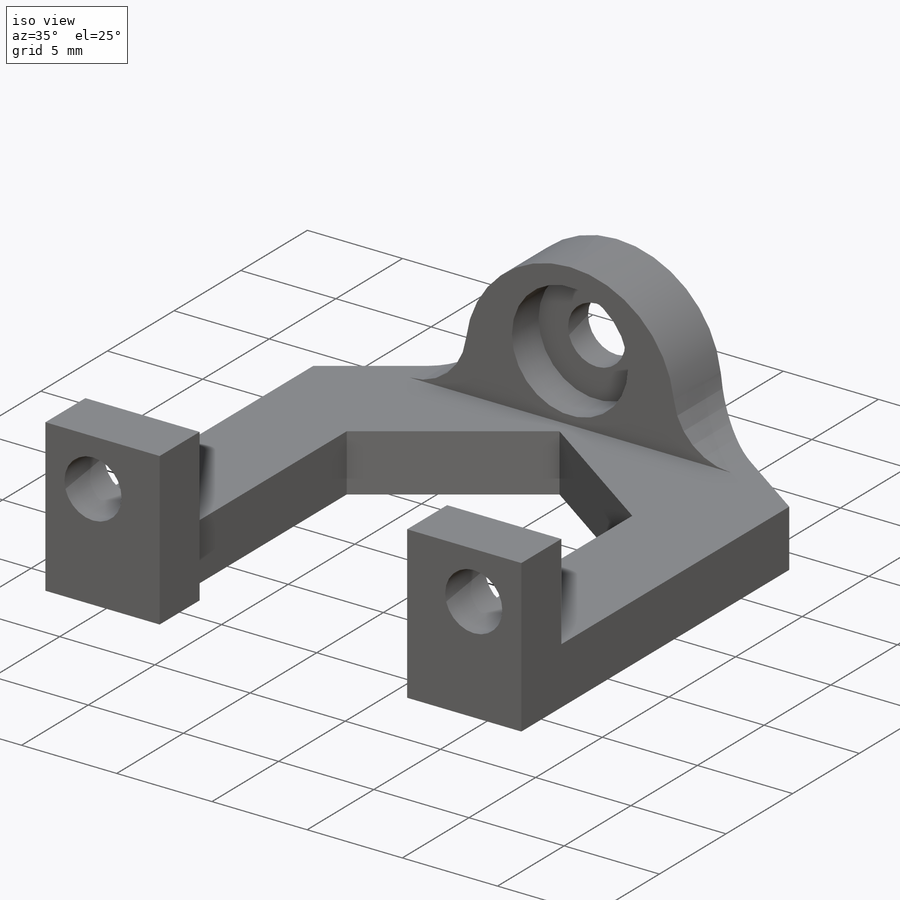
[diagram: iso view]
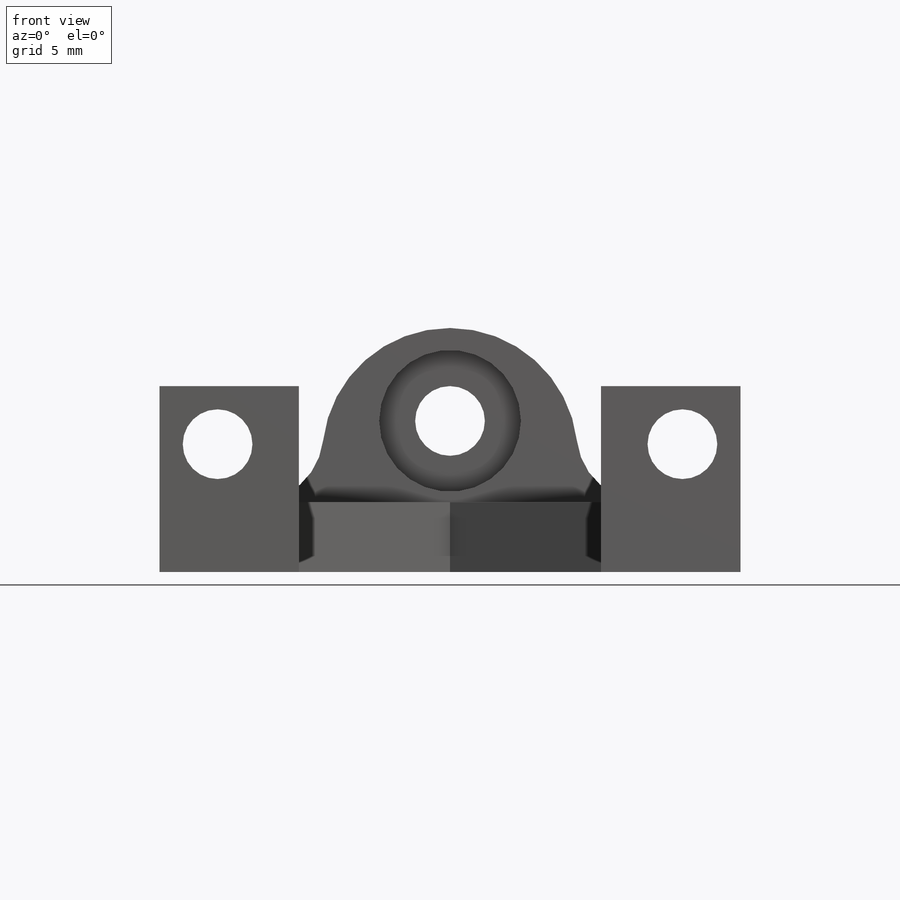
[diagram: front view]
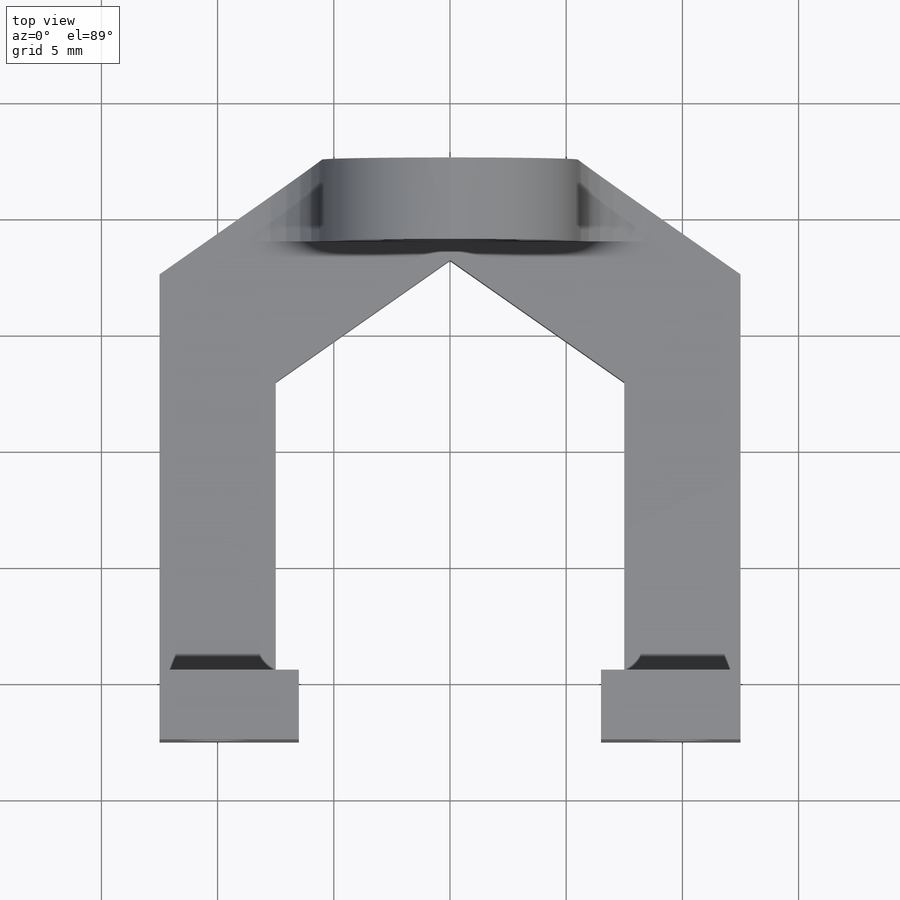
[diagram: top view]
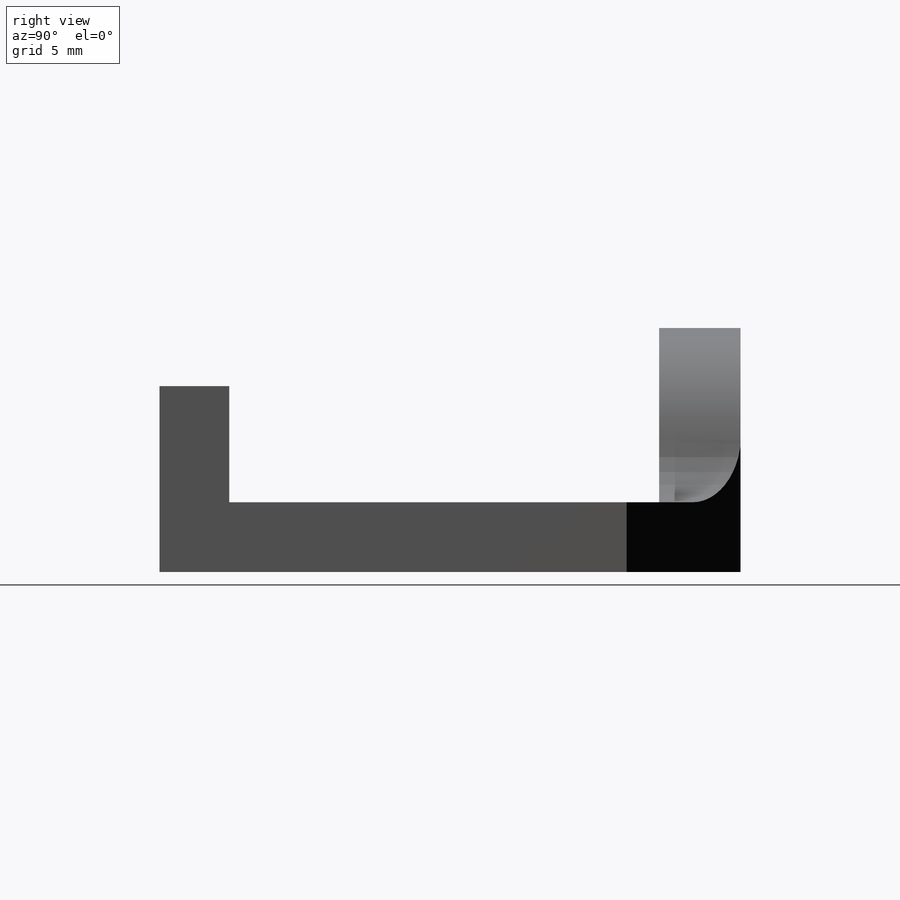
[diagram: right view]
SOLIDWORKS PART (.sldprt)
format: sldprt  version: not decoded by parser v0  size: 321,024 bytes
history: native  units: mm
features: sketch x10, extrude x7, cut_extrude x3, chamfer x2, fillet x2, material x1 (+13 scaffold rows collapsed)
feature tree (38):
  scaffold x13  (default folders/planes/origin — collapsed)
  material  "Material <not specified>"
  sketch  "Sketch1"  dims[c1.D1=25.0mm c1.D2=25.0mm c1.D3=5.0mm c1.D4=5.0mm c1.D5=11.5mm c2.D5=35.0deg c2.D6=11.5mm c3.D6=35.0deg c3.D5=~8.052387mm c4.D5=110.0deg c4.D6=~8.052387mm c4.D7=11.5mm c4.D8=~14.038908mm c5.D7=23.0mm c5.D6=12.5mm c6.D7=0.0mm]
  extrude  "Boss-Extrude1"  Depth=3mm
  sketch  "Sketch2"  dims[D1=5.0mm D2=5.0mm]
  extrude  "Boss-Extrude2"  Depth=3mm
  sketch  "Sketch3"  dims[D1=5.0mm D2=5.0mm]
  extrude  "Boss-Extrude4"  Depth=3mm
  sketch  "Sketch4"  dims[D1=3.0mm]
  cut_extrude  "Cut-Extrude1"  [1 undecoded]
  chamfer  "Chamfer1"  Distance=7mm Angle=35deg
  chamfer  "Chamfer2"  Distance=7mm Angle=35deg
  sketch  "Sketch6"  dims[D1=3.5mm D2=5.5mm D3=5.5mm]
  extrude  "Boss-Extrude5"  Depth=4.5mm
  sketch  "Sketch9"  dims[D1=3.5mm]
  extrude  "Boss-Extrude6"  Depth=3mm
  fillet  "Fillet1"  Radius=5.5mm
  fillet  "Fillet2"  Radius=3mm
  sketch  "Sketch16"  dims[D1=3.0mm D2=4.0mm]
  cut_extrude  "Cut-Extrude7"  [1 undecoded]
  sketch  "Sketch17"  dims[D1=6.1mm]
  cut_extrude  "Cut-Extrude8"  Depth=2mm
  sketch  "Sketch18"
  extrude  "Boss-Extrude7"  Depth=1mm
  sketch  "Sketch19"
  extrude  "Boss-Extrude8"  Depth=1mm
decode coverage: 20 of 24 modeling features carry decoded parameters
note: ~ marks probable driven/reference dimensions
note: 2 parameter values undecoded
note: suppression state not decoded; provenance and decode notes live in map.json
